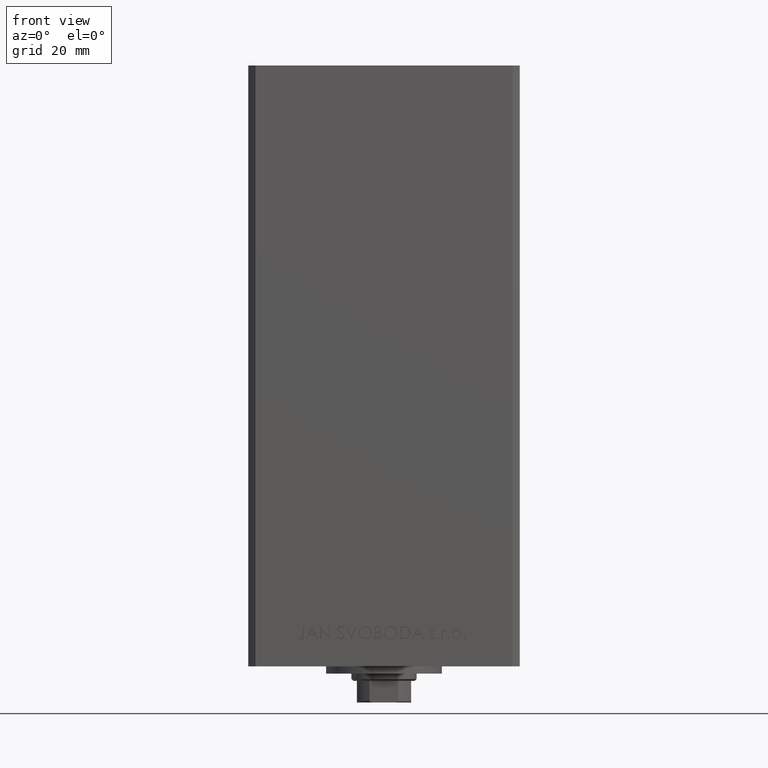
[diagram: clean part render]
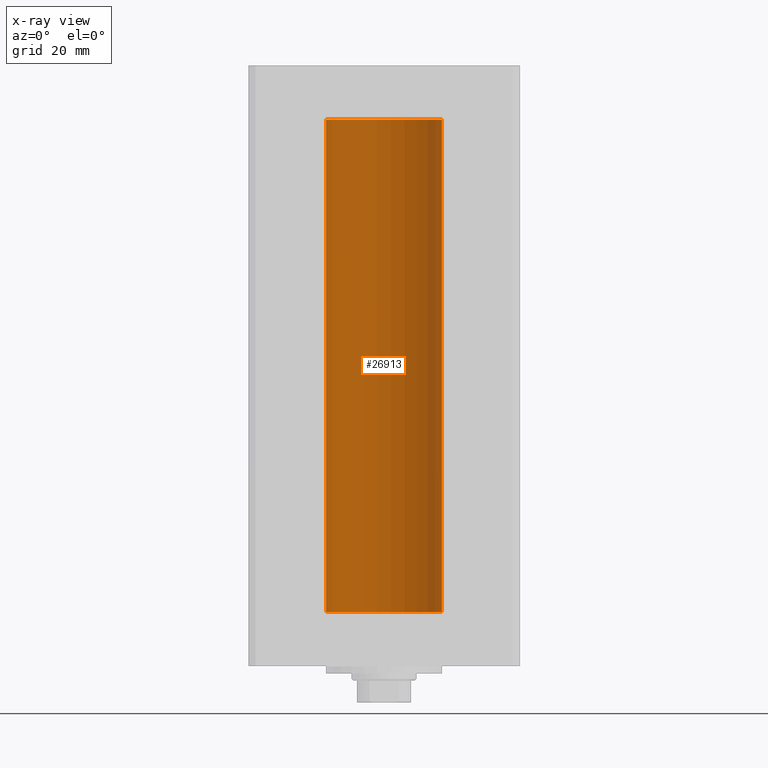
[diagram: x-ray — body ghosted, one internal face saturated and labeled with its STEP entity id]
A machine part, front view, then the same camera in x-ray: the body is ghosted and one INTERNAL B-rep face — a face not visible from any outside direction — is saturated and labeled: STEP entity #26913.
In plain terms, the highlighted cylindrical surface (partial cylindrical patch) has radius 16 mm, axis along (-0, -0, -1).
Its self-contained STEP definition (entity closure, byte-faithful):
#3015 = CARTESIAN_POINT ( 'NONE',  ( 16.00000000000000000, 1.959434878635765131E-15, 136.0000000000000000 ) ) ;
#3600 = AXIS2_PLACEMENT_3D ( 'NONE', #5693, #39354, #17557 ) ;
#4655 = VERTEX_POINT ( 'NONE', #7834 ) ;
#5693 = CARTESIAN_POINT ( 'NONE',  ( 0.000000000000000000, 0.000000000000000000, 136.0000000000000000 ) ) ;
#5733 = CARTESIAN_POINT ( 'NONE',  ( 0.000000000000000000, 0.000000000000000000, 0.000000000000000000 ) ) ;
#7483 = AXIS2_PLACEMENT_3D ( 'NONE', #10237, #7495, #48558 ) ;
#7495 = DIRECTION ( 'NONE',  ( -0.000000000000000000, -0.000000000000000000, -1.000000000000000000 ) ) ;
#7834 = CARTESIAN_POINT ( 'NONE',  ( 16.00000000000000000, 1.959434878635765131E-15, 0.000000000000000000 ) ) ;
#10237 = CARTESIAN_POINT ( 'NONE',  ( 0.000000000000000000, 0.000000000000000000, 136.0000000000000000 ) ) ;
#10960 = FACE_OUTER_BOUND ( 'NONE', #24994, .T. ) ;
#13419 = EDGE_CURVE ( 'NONE', #45470, #13721, #13874, .T. ) ;
#13721 = VERTEX_POINT ( 'NONE', #13813 ) ;
#13813 = CARTESIAN_POINT ( 'NONE',  ( -16.00000000000000000, 0.000000000000000000, 0.000000000000000000 ) ) ;
#13874 = LINE ( 'NONE', #28509, #28538 ) ;
#14993 = ORIENTED_EDGE ( 'NONE', *, *, #29158, .T. ) ;
#17557 = DIRECTION ( 'NONE',  ( 1.000000000000000000, 0.000000000000000000, 0.000000000000000000 ) ) ;
#17599 = DIRECTION ( 'NONE',  ( -0.000000000000000000, 0.000000000000000000, 1.000000000000000000 ) ) ;
#19596 = VECTOR ( 'NONE', #33225, 1000.000000000000000 ) ;
#20204 = CIRCLE ( 'NONE', #3600, 16.00000000000000000 ) ;
#22537 = ORIENTED_EDGE ( 'NONE', *, *, #39011, .F. ) ;
#24994 = EDGE_LOOP ( 'NONE', ( #22537, #14993, #48321, #35217 ) ) ;
#26913 = ADVANCED_FACE ( 'NONE', ( #10960 ), #33263, .F. ) ;
#28509 = CARTESIAN_POINT ( 'NONE',  ( -16.00000000000000000, 0.000000000000000000, 136.0000000000000000 ) ) ;
#28538 = VECTOR ( 'NONE', #47031, 1000.000000000000000 ) ;
#29158 = EDGE_CURVE ( 'NONE', #44225, #45470, #20204, .T. ) ;
#32897 = CIRCLE ( 'NONE', #35254, 16.00000000000000000 ) ;
#33225 = DIRECTION ( 'NONE',  ( -0.000000000000000000, -0.000000000000000000, -1.000000000000000000 ) ) ;
#33263 = CYLINDRICAL_SURFACE ( 'NONE', #7483, 16.00000000000000000 ) ;
#34594 = CARTESIAN_POINT ( 'NONE',  ( 16.00000000000000000, 1.959434878635765131E-15, 136.0000000000000000 ) ) ;
#35217 = ORIENTED_EDGE ( 'NONE', *, *, #45762, .F. ) ;
#35254 = AXIS2_PLACEMENT_3D ( 'NONE', #5733, #17599, #35930 ) ;
#35930 = DIRECTION ( 'NONE',  ( 1.000000000000000000, 0.000000000000000000, 0.000000000000000000 ) ) ;
#36929 = LINE ( 'NONE', #3015, #19596 ) ;
#39011 = EDGE_CURVE ( 'NONE', #44225, #4655, #36929, .T. ) ;
#39354 = DIRECTION ( 'NONE',  ( -0.000000000000000000, 0.000000000000000000, 1.000000000000000000 ) ) ;
#43880 = CARTESIAN_POINT ( 'NONE',  ( -16.00000000000000000, 0.000000000000000000, 136.0000000000000000 ) ) ;
#44225 = VERTEX_POINT ( 'NONE', #34594 ) ;
#45470 = VERTEX_POINT ( 'NONE', #43880 ) ;
#45762 = EDGE_CURVE ( 'NONE', #4655, #13721, #32897, .T. ) ;
#47031 = DIRECTION ( 'NONE',  ( -0.000000000000000000, -0.000000000000000000, -1.000000000000000000 ) ) ;
#48321 = ORIENTED_EDGE ( 'NONE', *, *, #13419, .T. ) ;
#48558 = DIRECTION ( 'NONE',  ( -1.000000000000000000, 0.000000000000000000, 0.000000000000000000 ) ) ;